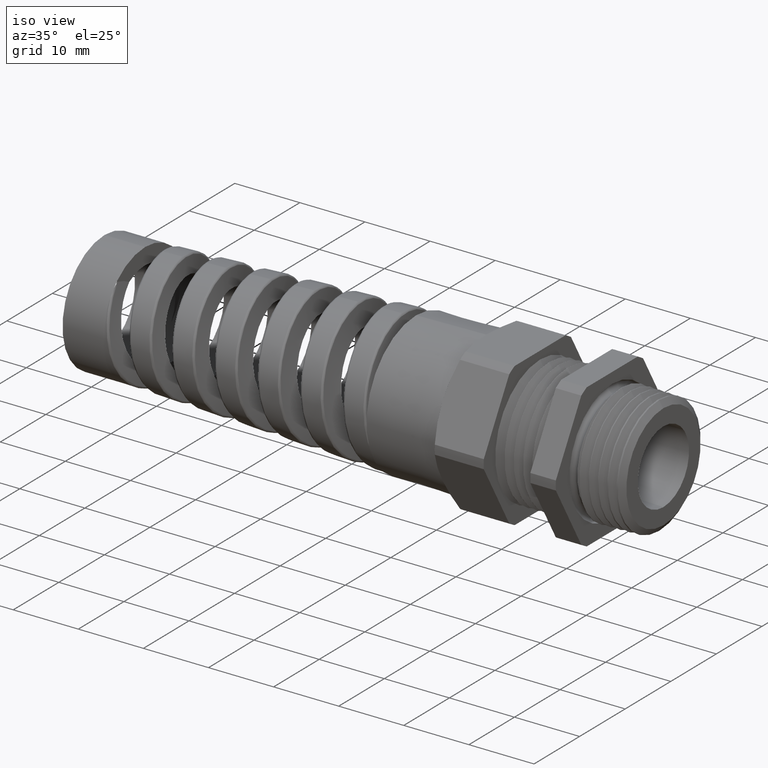
[diagram: clean part render]
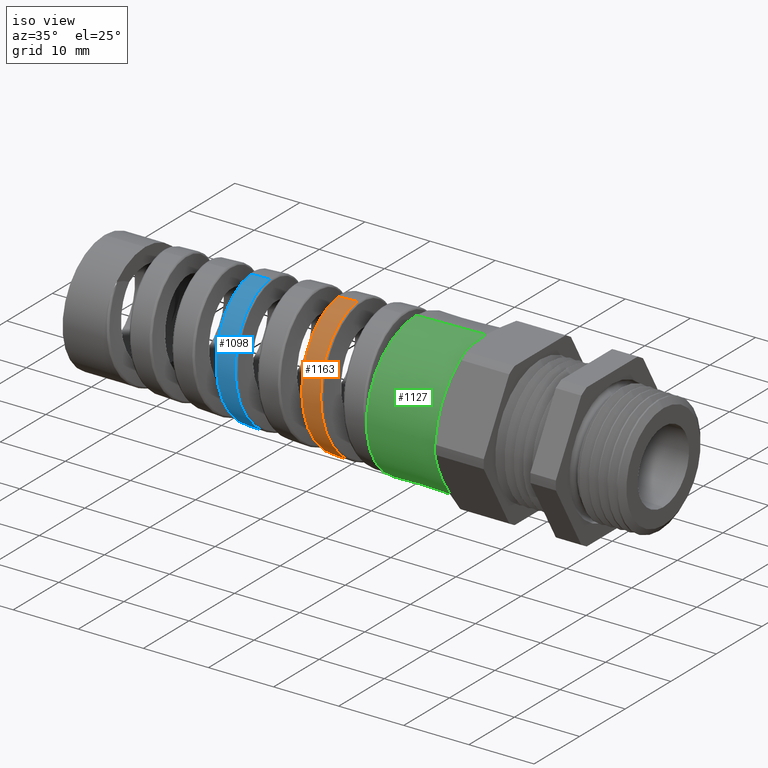
[diagram: same view with three faces highlighted in distinct colors, each labeled with its STEP entity id]
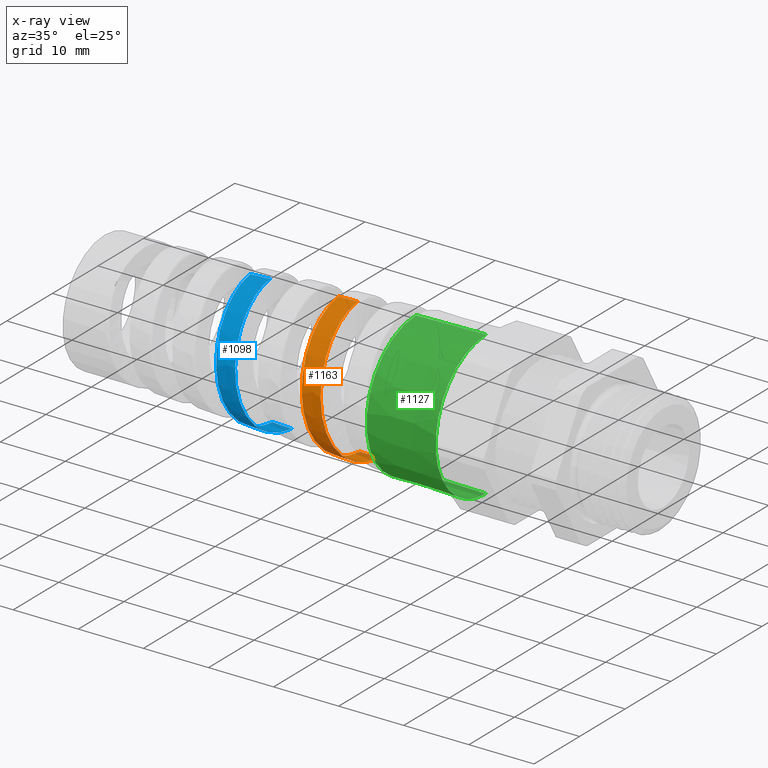
[diagram: x-ray of the same camera — body ghosted, the three highlighted faces saturated]
A machine part, iso view with three faces highlighted in distinct colors.
The next image is the same camera in x-ray (body ghosted, the three faces saturated) — at least one of them is partly hidden behind the body in this view.
Their STEP definitions:

[orange] entity #1163 — the highlighted conical surface has half-angle 2.001 deg.
#1137 = VERTEX_POINT ( 'NONE', #1633 ) ;
#1163 = ADVANCED_FACE ( 'NONE', ( #1777 ), #1918, .T. ) ;
#1164 = EDGE_LOOP ( 'NONE', ( #1165, #1166, #1168, #1169 ) ) ;
#1165 = ORIENTED_EDGE ( 'NONE', *, *, #4251, .F. ) ;
#1166 = ORIENTED_EDGE ( 'NONE', *, *, #1167, .T. ) ;
#1167 = EDGE_CURVE ( 'NONE', #1137, #1198, #1912, .T. ) ;
#1168 = ORIENTED_EDGE ( 'NONE', *, *, #1190, .T. ) ;
#1169 = ORIENTED_EDGE ( 'NONE', *, *, #1170, .T. ) ;
#1170 = EDGE_CURVE ( 'NONE', #1188, #4253, #1951, .T. ) ;
#1188 = VERTEX_POINT ( 'NONE', #2191 ) ;
#1190 = EDGE_CURVE ( 'NONE', #1198, #1188, #2225, .T. ) ;
#1198 = VERTEX_POINT ( 'NONE', #2303 ) ;
#1633 = CARTESIAN_POINT ( 'NONE',  ( -1.657005368434619100, -1.045155905622885300E-014, 0.4037536495823551600 ) ) ;
#1777 = FACE_OUTER_BOUND ( 'NONE', #1164, .T. ) ;
#1819 = CARTESIAN_POINT ( 'NONE',  ( -0.7624999999999998400, 0.0000000000000000000, 0.0000000000000000000 ) ) ;
#1871 = CARTESIAN_POINT ( 'NONE',  ( -1.554643207605568700, -0.2681517253787635300, -0.3077565691389879100 ) ) ;
#1873 = CARTESIAN_POINT ( 'NONE',  ( -1.558769546531999900, -0.2962620902932969200, -0.2796499718307309800 ) ) ;
#1874 = CARTESIAN_POINT ( 'NONE',  ( -1.560150133482987000, -0.3052030713080122200, -0.2697979116067020200 ) ) ;
#1876 = CARTESIAN_POINT ( 'NONE',  ( -1.562933152212192500, -0.3221979301055433200, -0.2490967114207475200 ) ) ;
#1877 = CARTESIAN_POINT ( 'NONE',  ( -1.564322550680040400, -0.3301682368409062900, -0.2383420440853452100 ) ) ;
#1878 = CARTESIAN_POINT ( 'NONE',  ( -1.568454685550912700, -0.3522896315843009300, -0.2052340865490440100 ) ) ;
#1879 = CARTESIAN_POINT ( 'NONE',  ( -1.571181004664201600, -0.3647802304983710500, -0.1819089893058185600 ) ) ;
#1880 = CARTESIAN_POINT ( 'NONE',  ( -1.575317304388700100, -0.3800948421174691900, -0.1450324934828449200 ) ) ;
#1881 = CARTESIAN_POINT ( 'NONE',  ( -1.576711153918873800, -0.3846426937054626700, -0.1323542195636096500 ) ) ;
#1882 = CARTESIAN_POINT ( 'NONE',  ( -1.579476848268243100, -0.3923977073386157900, -0.1068322747340641500 ) ) ;
#1883 = CARTESIAN_POINT ( 'NONE',  ( -1.580852031547526100, -0.3956242416152773200, -0.09396144797018725300 ) ) ;
#1884 = CARTESIAN_POINT ( 'NONE',  ( -1.584975670297830200, -0.4033948527210536300, -0.05502899458217374400 ) ) ;
#1885 = CARTESIAN_POINT ( 'NONE',  ( -1.587722580518182700, -0.4060483805885239900, -0.02865052290081243300 ) ) ;
#1886 = CARTESIAN_POINT ( 'NONE',  ( -1.593308739400462800, -0.4060957745787011100, 0.02497767727719830300 ) ) ;
#1887 = CARTESIAN_POINT ( 'NONE',  ( -1.596059741132180900, -0.4034808310636031100, 0.05142030298725103900 ) ) ;
#1888 = CARTESIAN_POINT ( 'NONE',  ( -1.600182434010674700, -0.3957709864602546000, 0.09035565562755415400 ) ) ;
#1889 = CARTESIAN_POINT ( 'NONE',  ( -1.601557539039651300, -0.3925651607315482900, 0.1032224002376031500 ) ) ;
#1890 = CARTESIAN_POINT ( 'NONE',  ( -1.604324434086305000, -0.3848550645715722000, 0.1287262081812939300 ) ) ;
#1892 = CARTESIAN_POINT ( 'NONE',  ( -1.605722281214492700, -0.3803235950986437200, 0.1414152182817947400 ) ) ;
#1893 = CARTESIAN_POINT ( 'NONE',  ( -1.609877268563204600, -0.3650360437026247700, 0.1783475519873148300 ) ) ;
#1894 = CARTESIAN_POINT ( 'NONE',  ( -1.612619539223483900, -0.3525600746896031500, 0.2016842173047401800 ) ) ;
#1895 = CARTESIAN_POINT ( 'NONE',  ( -1.618154949039098300, -0.3231029535406170800, 0.2458107189588132600 ) ) ;
#1897 = CARTESIAN_POINT ( 'NONE',  ( -1.620969894004582200, -0.3059375753633538100, 0.2667212309695742300 ) ) ;
#1898 = CARTESIAN_POINT ( 'NONE',  ( -1.626498472146980800, -0.2684179883808136500, 0.3041930356925076600 ) ) ;
#1899 = CARTESIAN_POINT ( 'NONE',  ( -1.629239257126190400, -0.2479566896947310300, 0.3209831458487709700 ) ) ;
#1900 = CARTESIAN_POINT ( 'NONE',  ( -1.633404918620987800, -0.2146708157979143600, 0.3431875901470837800 ) ) ;
#1901 = CARTESIAN_POINT ( 'NONE',  ( -1.634805830798715900, -0.2031088711866093600, 0.3500967161934149800 ) ) ;
#1902 = CARTESIAN_POINT ( 'NONE',  ( -1.637579875008720900, -0.1796128371607581000, 0.3626041416551319400 ) ) ;
#1903 = CARTESIAN_POINT ( 'NONE',  ( -1.640341041720258200, -0.1556291128142057400, 0.3738864467045877000 ) ) ;
#1904 = CARTESIAN_POINT ( 'NONE',  ( -1.643104442780793000, -0.1306898924524170800, 0.3827606504749334600 ) ) ;
#1905 = CARTESIAN_POINT ( 'NONE',  ( -1.645881547714097600, -0.1052689472690607600, 0.3904172032816177200 ) ) ;
#1906 = CARTESIAN_POINT ( 'NONE',  ( -1.647282334799393700, -0.09226704677959678100, 0.3936462523018096100 ) ) ;
#1907 = CARTESIAN_POINT ( 'NONE',  ( -1.651486233508442600, -0.05285700989125091700, 0.4013672110305663300 ) ) ;
#1908 = CARTESIAN_POINT ( 'NONE',  ( -1.654241719995697600, -0.02647720809017997700, 0.4038501877704983600 ) ) ;
#1909 = CARTESIAN_POINT ( 'NONE',  ( -1.657005368434619100, -1.045155905622885300E-014, 0.4037536495823551600 ) ) ;
#1912 = B_SPLINE_CURVE_WITH_KNOTS ( 'NONE', 3,
 ( #1909, #1908, #1907, #1906, #1905, #1904, #1903, #1902, #1901, #1900, #1899, #1898, #1897, #1895, #1894, #1893, #1892, #1890, #1889, #1888, #1887, #1886, #1885, #1884, #1883, #1882, #1881, #1880, #1879, #1878, #1877, #1876, #1874, #1873, #1871, #1964, #1963, #1962, #1961, #1960, #1959, #1958, #1957, #1956, #1955, #1954, #1953 ),
 .UNSPECIFIED., .F., .F.,
 ( 4, 2, 2, 1, 2, 2, 2, 2, 2, 2, 2, 2, 2, 2, 2, 2, 2, 2, 2, 2, 2, 2, 2, 4 ),
 ( 0.2727568473908104600, 0.2748078867134302600, 0.2758334063747401300, 0.2768589260360500600, 0.2778844456973599300, 0.2789099653586698500, 0.2809610046812895900, 0.2830120440039093900, 0.2850630833265291900, 0.2860886029878391100, 0.2871141226491489800, 0.2891651619717687800, 0.2912162012943885800, 0.2922417209556984500, 0.2932672406170083700, 0.2953182799396281700, 0.2963437996009380400, 0.2973693192622479700, 0.2994203585848677100, 0.3004458782461776300, 0.3014713979074875000, 0.3024969175687974300, 0.3035224372301073000, 0.3055734765527271000 ),
 .UNSPECIFIED. ) ;
#1914 = DIRECTION ( 'NONE',  ( 0.0000000000000000000, 0.0000000000000000000, -1.000000000000000000 ) ) ;
#1915 = DIRECTION ( 'NONE',  ( 1.000000000000000000, 0.0000000000000000000, 0.0000000000000000000 ) ) ;
#1917 = AXIS2_PLACEMENT_3D ( 'NONE', #1819, #1915, #1914 ) ;
#1918 = CONICAL_SURFACE ( 'NONE', #1917, 0.4350000000000000500, 0.03491723117042448000 ) ;
#1919 = CARTESIAN_POINT ( 'NONE',  ( -1.480046302819386600, -0.4049562026441457200, 0.06508273617276491600 ) ) ;
#1920 = CARTESIAN_POINT ( 'NONE',  ( -1.478671961953510000, -0.4069133030181418800, 0.05184669311080660600 ) ) ;
#1921 = CARTESIAN_POINT ( 'NONE',  ( -1.475911305220831200, -0.4095301354939407400, 0.02511305518285657200 ) ) ;
#1922 = CARTESIAN_POINT ( 'NONE',  ( -1.474517224428818900, -0.4101876525493743900, 0.01153965946888415600 ) ) ;
#1923 = CARTESIAN_POINT ( 'NONE',  ( -1.470361166416759300, -0.4101406575147386000, -0.02892347396694809600 ) ) ;
#1924 = CARTESIAN_POINT ( 'NONE',  ( -1.467626828816071000, -0.4074739780076518900, -0.05553412916617405500 ) ) ;
#1925 = CARTESIAN_POINT ( 'NONE',  ( -1.463495352686015700, -0.3996158219831514900, -0.09490741290201500100 ) ) ;
#1926 = CARTESIAN_POINT ( 'NONE',  ( -1.462113387597545400, -0.3963488750980924700, -0.1079407758878054700 ) ) ;
#1928 = CARTESIAN_POINT ( 'NONE',  ( -1.459327137876068600, -0.3884793560040021900, -0.1338183818552980400 ) ) ;
#1929 = CARTESIAN_POINT ( 'NONE',  ( -1.457934968938724900, -0.3839063486530585000, -0.1465479253012451400 ) ) ;
#1930 = CARTESIAN_POINT ( 'NONE',  ( -1.453792879070466600, -0.3684769638541199900, -0.1836933669511928700 ) ) ;
#1932 = CARTESIAN_POINT ( 'NONE',  ( -1.451061894430551300, -0.3558711781981850300, -0.2072595311924391400 ) ) ;
#1933 = CARTESIAN_POINT ( 'NONE',  ( -1.446927286220980500, -0.3334616899313496100, -0.2407917048056592300 ) ) ;
#1934 = CARTESIAN_POINT ( 'NONE',  ( -1.445535132860558600, -0.3253559376544832300, -0.2517173067255709100 ) ) ;
#1935 = CARTESIAN_POINT ( 'NONE',  ( -1.442774457698816800, -0.3082540146286708600, -0.2725378076026095900 ) ) ;
#1936 = CARTESIAN_POINT ( 'NONE',  ( -1.441402690357250100, -0.2992464760460175100, -0.2824633674992345100 ) ) ;
#1937 = CARTESIAN_POINT ( 'NONE',  ( -1.437291201384585800, -0.2708877031242478700, -0.3108184153846704800 ) ) ;
#1938 = CARTESIAN_POINT ( 'NONE',  ( -1.434555046747972600, -0.2502131505987501000, -0.3278399003478225100 ) ) ;
#1939 = CARTESIAN_POINT ( 'NONE',  ( -1.428988762889460000, -0.2051974848470881100, -0.3579660362141629500 ) ) ;
#1940 = CARTESIAN_POINT ( 'NONE',  ( -1.426242023825827100, -0.1815238534716887800, -0.3706139354960386600 ) ) ;
#1941 = CARTESIAN_POINT ( 'NONE',  ( -1.422134982651174700, -0.1445068672804340800, -0.3860126430860309500 ) ) ;
#1942 = CARTESIAN_POINT ( 'NONE',  ( -1.420766133175137300, -0.1319059404207564600, -0.3905517366897475800 ) ) ;
#1943 = CARTESIAN_POINT ( 'NONE',  ( -1.418014214589937900, -0.1061710628562149700, -0.3984178230987684400 ) ) ;
#1944 = CARTESIAN_POINT ( 'NONE',  ( -1.416625007399998000, -0.09297704156383970700, -0.4017517311229860100 ) ) ;
#1946 = CARTESIAN_POINT ( 'NONE',  ( -1.412497802065200600, -0.05338908640080863900, -0.4097086133783756600 ) ) ;
#1948 = CARTESIAN_POINT ( 'NONE',  ( -1.409777751578805900, -0.02679252581223530100, -0.4123896634307366900 ) ) ;
#1949 = CARTESIAN_POINT ( 'NONE',  ( -1.407034006247075900, 9.802048682818862400E-013, -0.4124855063748489900 ) ) ;
#1951 = B_SPLINE_CURVE_WITH_KNOTS ( 'NONE', 3,
 ( #1949, #1948, #1946, #1944, #1943, #1942, #1941, #1940, #1939, #1938, #1937, #1936, #1935, #1934, #1933, #1932, #1930, #1929, #1928, #1926, #1925, #1924, #1923, #1922, #1921, #1920, #1919, #2009, #2008, #2007, #2006, #2005, #2004, #2003, #2002, #2001, #2000, #1999, #1998, #1997, #1996, #1995, #1994, #1993, #1992, #1991, #1990, #1989 ),
 .UNSPECIFIED., .F., .F.,
 ( 4, 2, 2, 2, 2, 2, 2, 2, 2, 2, 2, 2, 2, 2, 2, 2, 2, 2, 2, 2, 2, 2, 2, 4 ),
 ( 0.05611554522368703700, 0.05819069759877451600, 0.05922827378631825800, 0.06026584997386200100, 0.06234100234894948700, 0.06441615472403697300, 0.06545373091158070100, 0.06649130709912443000, 0.06856645947421191600, 0.06960403566175564500, 0.07064161184929938800, 0.07271676422438685900, 0.07375434041193060200, 0.07479191659947433100, 0.07582949278701806000, 0.07686706897456180300, 0.07894222134964927500, 0.07997979753719301800, 0.08101737372473674600, 0.08309252609982423200, 0.08413010228736797500, 0.08516767847491170400, 0.08724283084999918900, 0.08931798322508666100 ),
 .UNSPECIFIED. ) ;
#1953 = CARTESIAN_POINT ( 'NONE',  ( -1.524398681176952500, -5.001064890486754300E-014, -0.4083857906113432800 ) ) ;
#1954 = CARTESIAN_POINT ( 'NONE',  ( -1.527135124343977500, -0.02647779358396378300, -0.4082902027422090600 ) ) ;
#1955 = CARTESIAN_POINT ( 'NONE',  ( -1.529866479411397000, -0.05283878206886791900, -0.4056442032149785700 ) ) ;
#1956 = CARTESIAN_POINT ( 'NONE',  ( -1.534027275084713900, -0.09219183359646517000, -0.3977235993327366000 ) ) ;
#1957 = CARTESIAN_POINT ( 'NONE',  ( -1.535415709290413900, -0.1051908670467194000, -0.3944312213625750200 ) ) ;
#1958 = CARTESIAN_POINT ( 'NONE',  ( -1.538165156104614800, -0.1305880198175354800, -0.3866646022841682100 ) ) ;
#1959 = CARTESIAN_POINT ( 'NONE',  ( -1.539532140920263800, -0.1430430980559366500, -0.3821794182462758800 ) ) ;
#1960 = CARTESIAN_POINT ( 'NONE',  ( -1.542266629925832700, -0.1674701098350784800, -0.3720192069734965000 ) ) ;
#1961 = CARTESIAN_POINT ( 'NONE',  ( -1.543633822550640700, -0.1794420846570636000, -0.3663441953395046900 ) ) ;
#1962 = CARTESIAN_POINT ( 'NONE',  ( -1.546382713477460400, -0.2028933117100660800, -0.3537846024406177700 ) ) ;
#1963 = CARTESIAN_POINT ( 'NONE',  ( -1.547772145725865100, -0.2144334227519800200, -0.3468562112144383300 ) ) ;
#1964 = CARTESIAN_POINT ( 'NONE',  ( -1.551913703816812700, -0.2477067271942180500, -0.3245749696598713200 ) ) ;
#1989 = CARTESIAN_POINT ( 'NONE',  ( -1.539625648009477700, -1.770506723508822800E-016, 0.4078538909065045900 ) ) ;
#1990 = CARTESIAN_POINT ( 'NONE',  ( -1.536859298258108400, -0.02672640283955365900, 0.4079505234553514300 ) ) ;
#1991 = CARTESIAN_POINT ( 'NONE',  ( -1.534097885512245100, -0.05348755009893144800, 0.4054306841803483900 ) ) ;
#1992 = CARTESIAN_POINT ( 'NONE',  ( -1.528510137682392400, -0.1066082729971419100, 0.3950050172826442600 ) ) ;
#1993 = CARTESIAN_POINT ( 'NONE',  ( -1.525759965421271200, -0.1322356991731356600, 0.3872580809966981200 ) ) ;
#1994 = CARTESIAN_POINT ( 'NONE',  ( -1.521613011493097000, -0.1693202355728110900, 0.3719782859300625500 ) ) ;
#1995 = CARTESIAN_POINT ( 'NONE',  ( -1.520227297157463700, -0.1814540166643766600, 0.3662706505733264700 ) ) ;
#1996 = CARTESIAN_POINT ( 'NONE',  ( -1.517436237225289600, -0.2052535064576146700, 0.3535964046279634900 ) ) ;
#1997 = CARTESIAN_POINT ( 'NONE',  ( -1.516030178084786900, -0.2169199190408656600, 0.3466179552516858700 ) ) ;
#1998 = CARTESIAN_POINT ( 'NONE',  ( -1.511859044358217200, -0.2504424270100486000, 0.3242488750579899900 ) ) ;
#1999 = CARTESIAN_POINT ( 'NONE',  ( -1.509113773145862800, -0.2711075598628577300, 0.3073044987976891200 ) ) ;
#2000 = CARTESIAN_POINT ( 'NONE',  ( -1.504966571227076600, -0.2995851150286084600, 0.2788594608295431600 ) ) ;
#2001 = CARTESIAN_POINT ( 'NONE',  ( -1.503572163001744900, -0.3086958021615345800, 0.2688178749163185900 ) ) ;
#2002 = CARTESIAN_POINT ( 'NONE',  ( -1.500790452836147800, -0.3258308961878131300, 0.2479312223716337300 ) ) ;
#2003 = CARTESIAN_POINT ( 'NONE',  ( -1.499409721719605600, -0.3338200052290456500, 0.2371409654018625200 ) ) ;
#2004 = CARTESIAN_POINT ( 'NONE',  ( -1.495275276321623000, -0.3561011103454582700, 0.2037614729345977000 ) ) ;
#2005 = CARTESIAN_POINT ( 'NONE',  ( -1.492528981369897600, -0.3687228285111642200, 0.1801730846785158900 ) ) ;
#2006 = CARTESIAN_POINT ( 'NONE',  ( -1.488345711147501800, -0.3842097475226974900, 0.1427388749066266500 ) ) ;
#2007 = CARTESIAN_POINT ( 'NONE',  ( -1.486946165112110300, -0.3887660233942792400, 0.1299625408647942800 ) ) ;
#2008 = CARTESIAN_POINT ( 'NONE',  ( -1.484175504551327200, -0.3965297233216042400, 0.1042725937705103200 ) ) ;
#2009 = CARTESIAN_POINT ( 'NONE',  ( -1.482797604603491200, -0.3997644193682375300, 0.09129573741376634200 ) ) ;
#2191 = CARTESIAN_POINT ( 'NONE',  ( -1.407034006247075900, 9.802048682818862400E-013, -0.4124855063748489900 ) ) ;
#2221 = DIRECTION ( 'NONE',  ( 0.9993904554178625300, 0.0000000000000000000, -0.03491013634572582400 ) ) ;
#2223 = VECTOR ( 'NONE', #2221, 39.37007874015748900 ) ;
#2224 = CARTESIAN_POINT ( 'NONE',  ( -0.7624999999999998400, 0.0000000000000000000, -0.4350000000000000500 ) ) ;
#2225 = LINE ( 'NONE', #2224, #2223 ) ;
#2303 = CARTESIAN_POINT ( 'NONE',  ( -1.524398681176952500, -5.001064890486754300E-014, -0.4083857906113432800 ) ) ;
#4251 = EDGE_CURVE ( 'NONE', #1137, #4253, #6978, .T. ) ;
#4253 = VERTEX_POINT ( 'NONE', #6974 ) ;
#6974 = CARTESIAN_POINT ( 'NONE',  ( -1.539625648009477700, -1.770506723508822800E-016, 0.4078538909065045900 ) ) ;
#6975 = DIRECTION ( 'NONE',  ( 0.9993904554178625300, 4.275258673359081200E-018, 0.03491013634572582400 ) ) ;
#6976 = VECTOR ( 'NONE', #6975, 39.37007874015748900 ) ;
#6977 = CARTESIAN_POINT ( 'NONE',  ( -0.7624999999999998400, 5.327213576290987000E-017, 0.4350000000000000500 ) ) ;
#6978 = LINE ( 'NONE', #6977, #6976 ) ;

[blue] entity #1098 — the highlighted conical surface has half-angle 2.001 deg.
#1098 = ADVANCED_FACE ( 'NONE', ( #1572 ), #1571, .T. ) ;
#1099 = EDGE_LOOP ( 'NONE', ( #1100, #1201, #1203, #1204 ) ) ;
#1100 = ORIENTED_EDGE ( 'NONE', *, *, #4152, .F. ) ;
#1201 = ORIENTED_EDGE ( 'NONE', *, *, #1202, .T. ) ;
#1202 = EDGE_CURVE ( 'NONE', #4150, #4208, #2334, .T. ) ;
#1203 = ORIENTED_EDGE ( 'NONE', *, *, #4246, .T. ) ;
#1204 = ORIENTED_EDGE ( 'NONE', *, *, #1205, .T. ) ;
#1205 = EDGE_CURVE ( 'NONE', #4244, #4189, #2371, .T. ) ;
#1567 = DIRECTION ( 'NONE',  ( 0.0000000000000000000, 0.0000000000000000000, -1.000000000000000000 ) ) ;
#1568 = DIRECTION ( 'NONE',  ( 1.000000000000000000, 0.0000000000000000000, 0.0000000000000000000 ) ) ;
#1569 = CARTESIAN_POINT ( 'NONE',  ( -0.7624999999999998400, 0.0000000000000000000, 0.0000000000000000000 ) ) ;
#1570 = AXIS2_PLACEMENT_3D ( 'NONE', #1569, #1568, #1567 ) ;
#1571 = CONICAL_SURFACE ( 'NONE', #1570, 0.4350000000000000500, 0.03491723117042448000 ) ;
#1572 = FACE_OUTER_BOUND ( 'NONE', #1099, .T. ) ;
#2305 = CARTESIAN_POINT ( 'NONE',  ( -2.126370660569407700, -0.3844977299442238200, 0.04866515709839282200 ) ) ;
#2307 = CARTESIAN_POINT ( 'NONE',  ( -2.127762174742125800, -0.3826361861277162700, 0.06132767738618325600 ) ) ;
#2308 = CARTESIAN_POINT ( 'NONE',  ( -2.131934761300744400, -0.3751907628877284000, 0.09889053147139538500 ) ) ;
#2309 = CARTESIAN_POINT ( 'NONE',  ( -2.134681747826880500, -0.3678479014409843400, 0.1230756931308243500 ) ) ;
#2310 = CARTESIAN_POINT ( 'NONE',  ( -2.138823722133870400, -0.3533745489376233200, 0.1580994651423452400 ) ) ;
#2312 = CARTESIAN_POINT ( 'NONE',  ( -2.140207691678158900, -0.3479694562831129300, 0.1695635975051179000 ) ) ;
#2313 = CARTESIAN_POINT ( 'NONE',  ( -2.142992072758975700, -0.3359657447497216300, 0.1920581349191107800 ) ) ;
#2314 = CARTESIAN_POINT ( 'NONE',  ( -2.144389017098595300, -0.3293732397556247700, 0.2030593515420266400 ) ) ;
#2315 = CARTESIAN_POINT ( 'NONE',  ( -2.148536531064225000, -0.3082387410800297400, 0.2346892385009958800 ) ) ;
#2317 = CARTESIAN_POINT ( 'NONE',  ( -2.151272859690020100, -0.2922275205443242700, 0.2542033726353158400 ) ) ;
#2318 = CARTESIAN_POINT ( 'NONE',  ( -2.155422266430241200, -0.2653320012069820300, 0.2811064137973303700 ) ) ;
#2319 = CARTESIAN_POINT ( 'NONE',  ( -2.156820497043112600, -0.2558288027932271200, 0.2897196870895734600 ) ) ;
#2321 = CARTESIAN_POINT ( 'NONE',  ( -2.159606213919483200, -0.2361088610831700300, 0.3058812003319825700 ) ) ;
#2322 = CARTESIAN_POINT ( 'NONE',  ( -2.160990707245102900, -0.2259190896999337400, 0.3134181947293119300 ) ) ;
#2323 = CARTESIAN_POINT ( 'NONE',  ( -2.165138996620118700, -0.1943885526359963000, 0.3344402712320093100 ) ) ;
#2324 = CARTESIAN_POINT ( 'NONE',  ( -2.167898222848323500, -0.1720958273801919100, 0.3463516376512482100 ) ) ;
#2325 = CARTESIAN_POINT ( 'NONE',  ( -2.172090797155350000, -0.1366917561326356200, 0.3609568788147579600 ) ) ;
#2326 = CARTESIAN_POINT ( 'NONE',  ( -2.173487895934960600, -0.1246353747481168900, 0.3652402050717422100 ) ) ;
#2327 = CARTESIAN_POINT ( 'NONE',  ( -2.176257496998212900, -0.1003714412120349400, 0.3725390380533971100 ) ) ;
#2328 = CARTESIAN_POINT ( 'NONE',  ( -2.179014103084315800, -0.07585307199170089600, 0.3786137880975949900 ) ) ;
#2329 = CARTESIAN_POINT ( 'NONE',  ( -2.181774188389468300, -0.05083453006399878800, 0.3822664657744580500 ) ) ;
#2330 = CARTESIAN_POINT ( 'NONE',  ( -2.184550824536832800, -0.02556306307304528900, 0.3846863316737793000 ) ) ;
#2331 = CARTESIAN_POINT ( 'NONE',  ( -2.185955198654601500, -0.01272982191988094600, 0.3852766763504000300 ) ) ;
#2332 = CARTESIAN_POINT ( 'NONE',  ( -2.187349891809638800, -8.194602628014416600E-016, 0.3852279577260228600 ) ) ;
#2334 = B_SPLINE_CURVE_WITH_KNOTS ( 'NONE', 3,
 ( #2332, #2331, #2330, #2329, #2328, #2327, #2326, #2325, #2324, #2323, #2322, #2321, #2319, #2318, #2317, #2315, #2314, #2313, #2312, #2310, #2309, #2308, #2307, #2305, #2396, #2395, #2394, #2393, #2392, #2391, #2390, #2389, #2388, #2387, #2386, #2385, #2384, #2383, #2382, #2381, #2380, #2379, #2378, #2377, #2376, #2375, #2374, #2373 ),
 .UNSPECIFIED., .F., .F.,
 ( 4, 2, 1, 2, 2, 2, 2, 2, 2, 2, 2, 2, 2, 1, 2, 2, 2, 2, 2, 2, 2, 2, 2, 2, 4 ),
 ( 0.1452595859533729600, 0.1462381205037656700, 0.1472166550541583700, 0.1481951896045510800, 0.1491737241549438200, 0.1511307932557292300, 0.1521093278061219400, 0.1530878623565146700, 0.1550449314573000800, 0.1560234660076927900, 0.1570020005580855000, 0.1589590696588709400, 0.1599376042092636500, 0.1609161387596563800, 0.1618946733100490900, 0.1628732078604417900, 0.1648302769612272300, 0.1667873460620126500, 0.1687444151627980900, 0.1697229497131908000, 0.1707014842635835000, 0.1726585533643689400, 0.1746156224651543600, 0.1755941570155470900, 0.1765726915659398000 ),
 .UNSPECIFIED. ) ;
#2353 = CARTESIAN_POINT ( 'NONE',  ( -1.975975392377489000, -0.3106910762444328700, -0.2403779669989765100 ) ) ;
#2354 = CARTESIAN_POINT ( 'NONE',  ( -1.973194742603825700, -0.2943035356183310600, -0.2603309827548739300 ) ) ;
#2355 = CARTESIAN_POINT ( 'NONE',  ( -1.971816982223186400, -0.2856816057460047100, -0.2698280515711145600 ) ) ;
#2356 = CARTESIAN_POINT ( 'NONE',  ( -1.967700539681868500, -0.2585727628063512800, -0.2969241396689332200 ) ) ;
#2357 = CARTESIAN_POINT ( 'NONE',  ( -1.964977492541665600, -0.2388543771279962300, -0.3131408680959431000 ) ) ;
#2358 = CARTESIAN_POINT ( 'NONE',  ( -1.960837373348062400, -0.2067602936284820800, -0.3346270567145474000 ) ) ;
#2359 = CARTESIAN_POINT ( 'NONE',  ( -1.959448033671843800, -0.1956357137558253900, -0.3413042662552064300 ) ) ;
#2360 = CARTESIAN_POINT ( 'NONE',  ( -1.956696987096510700, -0.1730270474035189300, -0.3534107441563102400 ) ) ;
#2361 = CARTESIAN_POINT ( 'NONE',  ( -1.953958155730190200, -0.1499413435336605100, -0.3643531576653039600 ) ) ;
#2362 = CARTESIAN_POINT ( 'NONE',  ( -1.951217429982925000, -0.1259195576538828000, -0.3730039704068515700 ) ) ;
#2364 = CARTESIAN_POINT ( 'NONE',  ( -1.948464105145526700, -0.1014252990883044200, -0.3804948121885222700 ) ) ;
#2365 = CARTESIAN_POINT ( 'NONE',  ( -1.947074637188145600, -0.08888236006132667300, -0.3836715279711551700 ) ) ;
#2366 = CARTESIAN_POINT ( 'NONE',  ( -1.942918631188538200, -0.05095195920732620300, -0.3913069386220182600 ) ) ;
#2367 = CARTESIAN_POINT ( 'NONE',  ( -1.940196756758513200, -0.02553565141961957800, -0.3938613698184951800 ) ) ;
#2368 = CARTESIAN_POINT ( 'NONE',  ( -1.937465472953645400, -3.638737823920153000E-014, -0.3939567774637376400 ) ) ;
#2371 = B_SPLINE_CURVE_WITH_KNOTS ( 'NONE', 3,
 ( #2368, #2367, #2366, #2365, #2364, #2362, #2361, #2360, #2359, #2358, #2357, #2356, #2355, #2354, #2353, #2452, #2451, #2449, #2448, #2446, #2445, #2443, #2441, #2440, #2439, #2438, #2436, #2435, #2433, #2431, #2430, #2429, #2428, #2426, #2424, #2423, #2421, #2420, #2418, #2417, #2415, #2413, #2412, #2410, #2409, #2408, #2407 ),
 .UNSPECIFIED., .F., .F.,
 ( 4, 2, 2, 1, 2, 2, 2, 2, 2, 2, 2, 2, 2, 2, 2, 2, 2, 2, 2, 2, 2, 2, 2, 4 ),
 ( 0.1866637668457372400, 0.1886448751772085400, 0.1896354293429442000, 0.1906259835086798500, 0.1916165376744154700, 0.1926070918401511200, 0.1945882001716224300, 0.1955787543373580800, 0.1965693085030937300, 0.1985504168345650400, 0.1995409710003006600, 0.2005315251660363100, 0.2025126334975076200, 0.2044937418289789200, 0.2054842959947145700, 0.2064748501604502200, 0.2084559584919215000, 0.2094465126576571500, 0.2104370668233928000, 0.2124181751548641100, 0.2143992834863354100, 0.2163803918178067200, 0.2173709459835423700, 0.2183615001492780200 ),
 .UNSPECIFIED. ) ;
#2373 = CARTESIAN_POINT ( 'NONE',  ( -2.054777784356680100, -6.632181507400093000E-013, -0.3898588908330314400 ) ) ;
#2374 = CARTESIAN_POINT ( 'NONE',  ( -2.056156249844125900, -0.01271866685871823200, -0.3898107390642453500 ) ) ;
#2375 = CARTESIAN_POINT ( 'NONE',  ( -2.057545743304332900, -0.02555456187931710200, -0.3891310326239851800 ) ) ;
#2376 = CARTESIAN_POINT ( 'NONE',  ( -2.060294930944400100, -0.05083321598198712500, -0.3865451195548335100 ) ) ;
#2377 = CARTESIAN_POINT ( 'NONE',  ( -2.061661145166771900, -0.06333832422216030500, -0.3846428471878191600 ) ) ;
#2378 = CARTESIAN_POINT ( 'NONE',  ( -2.065756325753397500, -0.1004563481114281700, -0.3771431116319911600 ) ) ;
#2379 = CARTESIAN_POINT ( 'NONE',  ( -2.068487297891895800, -0.1247248965586708500, -0.3697495001624309700 ) ) ;
#2380 = CARTESIAN_POINT ( 'NONE',  ( -2.074031881946055500, -0.1719467554079084900, -0.3500778671726684200 ) ) ;
#2381 = CARTESIAN_POINT ( 'NONE',  ( -2.076766365927292600, -0.1942211280190722400, -0.3380938843662714100 ) ) ;
#2382 = CARTESIAN_POINT ( 'NONE',  ( -2.080884866748907000, -0.2256951886422827200, -0.3170186376368514000 ) ) ;
#2383 = CARTESIAN_POINT ( 'NONE',  ( -2.082260215339130700, -0.2358613316397470100, -0.3094732782131202600 ) ) ;
#2384 = CARTESIAN_POINT ( 'NONE',  ( -2.085025632203731900, -0.2555267360666754200, -0.2933176417156739800 ) ) ;
#2385 = CARTESIAN_POINT ( 'NONE',  ( -2.086418319772672900, -0.2650422735625911400, -0.2846809583516328200 ) ) ;
#2386 = CARTESIAN_POINT ( 'NONE',  ( -2.090550677600564000, -0.2919610361951312500, -0.2577226786210651800 ) ) ;
#2387 = CARTESIAN_POINT ( 'NONE',  ( -2.093273207944855900, -0.3079685280357894500, -0.2382018471978895900 ) ) ;
#2388 = CARTESIAN_POINT ( 'NONE',  ( -2.098769102362217300, -0.3361279696883690000, -0.1960958582991277300 ) ) ;
#2389 = CARTESIAN_POINT ( 'NONE',  ( -2.101559934637094300, -0.3482976554230207100, -0.1733392901068927500 ) ) ;
#2390 = CARTESIAN_POINT ( 'NONE',  ( -2.107066008459458600, -0.3676615831824001600, -0.1266231617398268200 ) ) ;
#2391 = CARTESIAN_POINT ( 'NONE',  ( -2.109808834747845200, -0.3750264114744423200, -0.1024631437959762200 ) ) ;
#2392 = CARTESIAN_POINT ( 'NONE',  ( -2.113970642652275100, -0.3825170057485540200, -0.06499949323500411900 ) ) ;
#2393 = CARTESIAN_POINT ( 'NONE',  ( -2.115365946185532300, -0.3844089649976667500, -0.05229731371374735800 ) ) ;
#2394 = CARTESIAN_POINT ( 'NONE',  ( -2.118126096050118300, -0.3869099995952857700, -0.02703985511364929600 ) ) ;
#2395 = CARTESIAN_POINT ( 'NONE',  ( -2.120870829311356100, -0.3881610557184390100, -0.001789698151068600900 ) ) ;
#2396 = CARTESIAN_POINT ( 'NONE',  ( -2.123613904411846900, -0.3869519895740888800, 0.02344295321666029300 ) ) ;
#2407 = CARTESIAN_POINT ( 'NONE',  ( -2.070090085025429800, 9.851415753911152700E-017, 0.3893240102953848800 ) ) ;
#2408 = CARTESIAN_POINT ( 'NONE',  ( -2.068706397478911700, -0.01275478796503897400, 0.3893723444781329000 ) ) ;
#2409 = CARTESIAN_POINT ( 'NONE',  ( -2.067321257281926600, -0.02551692287056997100, 0.3887954528933204600 ) ) ;
#2410 = CARTESIAN_POINT ( 'NONE',  ( -2.064535561637732100, -0.05105477077705478100, 0.3863705800829785300 ) ) ;
#2412 = CARTESIAN_POINT ( 'NONE',  ( -2.063127197930660000, -0.06390072364570442700, 0.3845060129652627100 ) ) ;
#2413 = CARTESIAN_POINT ( 'NONE',  ( -2.058936909337592900, -0.1017770870643371800, 0.3770680400638583000 ) ) ;
#2415 = CARTESIAN_POINT ( 'NONE',  ( -2.056187387694968600, -0.1262143335602174700, 0.3696956165181569700 ) ) ;
#2417 = CARTESIAN_POINT ( 'NONE',  ( -2.050661931362297400, -0.1734835286275277500, 0.3502269055388103600 ) ) ;
#2418 = CARTESIAN_POINT ( 'NONE',  ( -2.047859068649838600, -0.1965053712176676200, 0.3379625791443772700 ) ) ;
#2420 = CARTESIAN_POINT ( 'NONE',  ( -2.042328240308913100, -0.2390715866045868000, 0.3095619716278759100 ) ) ;
#2421 = CARTESIAN_POINT ( 'NONE',  ( -2.039580169211417300, -0.2588116270515826700, 0.2933948745945859100 ) ) ;
#2423 = CARTESIAN_POINT ( 'NONE',  ( -2.035406553107438100, -0.2860744288120603600, 0.2661661170425326800 ) ) ;
#2424 = CARTESIAN_POINT ( 'NONE',  ( -2.034000721289456000, -0.2948005605864548200, 0.2565425152909437400 ) ) ;
#2426 = CARTESIAN_POINT ( 'NONE',  ( -2.031218851841305900, -0.3110971310940365300, 0.2366768408960771800 ) ) ;
#2428 = CARTESIAN_POINT ( 'NONE',  ( -2.029837750210473900, -0.3187083777454654500, 0.2264016993851233100 ) ) ;
#2429 = CARTESIAN_POINT ( 'NONE',  ( -2.025705226365460000, -0.3399637953500009300, 0.1945725927772288300 ) ) ;
#2430 = CARTESIAN_POINT ( 'NONE',  ( -2.022960500665468100, -0.3520527330641128300, 0.1720060952164595700 ) ) ;
#2431 = CARTESIAN_POINT ( 'NONE',  ( -2.018778813075570200, -0.3668852797299875800, 0.1361417587506207300 ) ) ;
#2433 = CARTESIAN_POINT ( 'NONE',  ( -2.017383089118689500, -0.3712379498136421700, 0.1239255569019852700 ) ) ;
#2435 = CARTESIAN_POINT ( 'NONE',  ( -2.014613344868410500, -0.3786609815139080300, 0.09933136870477919700 ) ) ;
#2436 = CARTESIAN_POINT ( 'NONE',  ( -2.013235781520284400, -0.3817466526671617300, 0.08692384512590316200 ) ) ;
#2438 = CARTESIAN_POINT ( 'NONE',  ( -2.009104665552326800, -0.3891646738400010300, 0.04937897811135574100 ) ) ;
#2439 = CARTESIAN_POINT ( 'NONE',  ( -2.006347759615433100, -0.3916759023286841600, 0.02388092746087295800 ) ) ;
#2440 = CARTESIAN_POINT ( 'NONE',  ( -2.000764456322671400, -0.3916104315337779500, -0.02782713621414339600 ) ) ;
#2441 = CARTESIAN_POINT ( 'NONE',  ( -1.998026102949132600, -0.3890425300859248800, -0.05326243568891034200 ) ) ;
#2443 = CARTESIAN_POINT ( 'NONE',  ( -1.993910130669261300, -0.3815364468120635600, -0.09080246797281252300 ) ) ;
#2445 = CARTESIAN_POINT ( 'NONE',  ( -1.992536777301728800, -0.3784209525365102000, -0.1032129225393363900 ) ) ;
#2446 = CARTESIAN_POINT ( 'NONE',  ( -1.989772409568191900, -0.3709348465401397500, -0.1278216948219350600 ) ) ;
#2448 = CARTESIAN_POINT ( 'NONE',  ( -1.988378285967513600, -0.3665463070075346600, -0.1400439999732224500 ) ) ;
#2449 = CARTESIAN_POINT ( 'NONE',  ( -1.984238030861943800, -0.3517706342153101300, -0.1755945426861454400 ) ) ;
#2451 = CARTESIAN_POINT ( 'NONE',  ( -1.981503677478864600, -0.3397215753694112800, -0.1980827857404341700 ) ) ;
#2452 = CARTESIAN_POINT ( 'NONE',  ( -1.977365610265740900, -0.3183819935618631400, -0.2300053144877525800 ) ) ;
#4150 = VERTEX_POINT ( 'NONE', #6478 ) ;
#4152 = EDGE_CURVE ( 'NONE', #4150, #4189, #6517, .T. ) ;
#4189 = VERTEX_POINT ( 'NONE', #6644 ) ;
#4208 = VERTEX_POINT ( 'NONE', #6750 ) ;
#4244 = VERTEX_POINT ( 'NONE', #6952 ) ;
#4246 = EDGE_CURVE ( 'NONE', #4208, #4244, #6982, .T. ) ;
#6478 = CARTESIAN_POINT ( 'NONE',  ( -2.187349891809638800, -8.194602628014416600E-016, 0.3852279577260228600 ) ) ;
#6515 = VECTOR ( 'NONE', #6603, 39.37007874015748900 ) ;
#6516 = CARTESIAN_POINT ( 'NONE',  ( -0.7624999999999998400, 5.327213576290987000E-017, 0.4350000000000000500 ) ) ;
#6517 = LINE ( 'NONE', #6516, #6515 ) ;
#6603 = DIRECTION ( 'NONE',  ( 0.9993904554178625300, 4.275258673359081200E-018, 0.03491013634572582400 ) ) ;
#6644 = CARTESIAN_POINT ( 'NONE',  ( -2.070090085025429800, 9.851415753911152700E-017, 0.3893240102953848800 ) ) ;
#6750 = CARTESIAN_POINT ( 'NONE',  ( -2.054777784356680100, -6.632181507400093000E-013, -0.3898588908330314400 ) ) ;
#6952 = CARTESIAN_POINT ( 'NONE',  ( -1.937465472953645400, -3.638737823920153000E-014, -0.3939567774637376400 ) ) ;
#6979 = DIRECTION ( 'NONE',  ( 0.9993904554178625300, 0.0000000000000000000, -0.03491013634572582400 ) ) ;
#6980 = VECTOR ( 'NONE', #6979, 39.37007874015748900 ) ;
#6981 = CARTESIAN_POINT ( 'NONE',  ( -0.7624999999999998400, 0.0000000000000000000, -0.4350000000000000500 ) ) ;
#6982 = LINE ( 'NONE', #6981, #6980 ) ;

[green] entity #1127 — the highlighted conical surface has half-angle 1 deg.
#1101 = VERTEX_POINT ( 'NONE', #1566 ) ;
#1102 = ORIENTED_EDGE ( 'NONE', *, *, #1103, .T. ) ;
#1103 = EDGE_CURVE ( 'NONE', #1131, #1104, #1565, .T. ) ;
#1104 = VERTEX_POINT ( 'NONE', #1561 ) ;
#1105 = ORIENTED_EDGE ( 'NONE', *, *, #1106, .T. ) ;
#1106 = EDGE_CURVE ( 'NONE', #1104, #1107, #1560, .T. ) ;
#1107 = VERTEX_POINT ( 'NONE', #1555 ) ;
#1108 = ORIENTED_EDGE ( 'NONE', *, *, #1109, .T. ) ;
#1109 = EDGE_CURVE ( 'NONE', #1107, #1110, #1621, .T. ) ;
#1110 = VERTEX_POINT ( 'NONE', #1616 ) ;
#1111 = ORIENTED_EDGE ( 'NONE', *, *, #1112, .T. ) ;
#1112 = EDGE_CURVE ( 'NONE', #1110, #1113, #1615, .T. ) ;
#1113 = VERTEX_POINT ( 'NONE', #1610 ) ;
#1114 = ORIENTED_EDGE ( 'NONE', *, *, #1115, .F. ) ;
#1115 = EDGE_CURVE ( 'NONE', #1101, #1113, #1609, .T. ) ;
#1127 = ADVANCED_FACE ( 'NONE', ( #1587 ), #1652, .T. ) ;
#1128 = EDGE_LOOP ( 'NONE', ( #1129, #1102, #1105, #1108, #1111, #1114 ) ) ;
#1129 = ORIENTED_EDGE ( 'NONE', *, *, #1130, .F. ) ;
#1130 = EDGE_CURVE ( 'NONE', #1131, #1101, #1651, .T. ) ;
#1131 = VERTEX_POINT ( 'NONE', #1642 ) ;
#1555 = CARTESIAN_POINT ( 'NONE',  ( -0.7625000000000001800, -0.3767210506462307900, -0.2175000000000002500 ) ) ;
#1556 = DIRECTION ( 'NONE',  ( 0.0000000000000000000, 0.0000000000000000000, 1.000000000000000000 ) ) ;
#1557 = DIRECTION ( 'NONE',  ( -1.000000000000000000, 0.0000000000000000000, 0.0000000000000000000 ) ) ;
#1558 = CARTESIAN_POINT ( 'NONE',  ( -0.7624999999999999600, 0.0000000000000000000, 0.0000000000000000000 ) ) ;
#1559 = AXIS2_PLACEMENT_3D ( 'NONE', #1558, #1557, #1556 ) ;
#1560 = CIRCLE ( 'NONE', #1559, 0.4350000000000000500 ) ;
#1561 = CARTESIAN_POINT ( 'NONE',  ( -0.7624999999999999600, 0.0000000000000000000, -0.4350000000000001600 ) ) ;
#1562 = DIRECTION ( 'NONE',  ( 0.9998476951563912700, -2.137303368083796300E-018, -0.01745240643728355000 ) ) ;
#1563 = VECTOR ( 'NONE', #1562, 39.37007874015748100 ) ;
#1564 = CARTESIAN_POINT ( 'NONE',  ( -0.7624999999999998400, -5.327213576290987000E-017, -0.4350000000000000500 ) ) ;
#1565 = LINE ( 'NONE', #1564, #1563 ) ;
#1566 = CARTESIAN_POINT ( 'NONE',  ( -1.186159999999999900, 0.0000000000000000000, 0.4276049871925114400 ) ) ;
#1587 = FACE_OUTER_BOUND ( 'NONE', #1128, .T. ) ;
#1606 = DIRECTION ( 'NONE',  ( 0.9998476951563912700, 0.0000000000000000000, 0.01745240643728355000 ) ) ;
#1607 = VECTOR ( 'NONE', #1606, 39.37007874015748100 ) ;
#1608 = CARTESIAN_POINT ( 'NONE',  ( -0.7624999999999998400, 0.0000000000000000000, 0.4350000000000000500 ) ) ;
#1609 = LINE ( 'NONE', #1608, #1607 ) ;
#1610 = CARTESIAN_POINT ( 'NONE',  ( -0.7624999999999998400, 0.0000000000000000000, 0.4350000000000000500 ) ) ;
#1611 = DIRECTION ( 'NONE',  ( 0.0000000000000000000, 0.0000000000000000000, 1.000000000000000000 ) ) ;
#1612 = DIRECTION ( 'NONE',  ( -1.000000000000000000, 0.0000000000000000000, 0.0000000000000000000 ) ) ;
#1613 = CARTESIAN_POINT ( 'NONE',  ( -0.7624999999999999600, 0.0000000000000000000, 0.0000000000000000000 ) ) ;
#1614 = AXIS2_PLACEMENT_3D ( 'NONE', #1613, #1612, #1611 ) ;
#1615 = CIRCLE ( 'NONE', #1614, 0.4350000000000000500 ) ;
#1616 = CARTESIAN_POINT ( 'NONE',  ( -0.7624999999999999600, -0.3767210506462307900, 0.2175000000000000300 ) ) ;
#1617 = DIRECTION ( 'NONE',  ( 0.0000000000000000000, 0.0000000000000000000, 1.000000000000000000 ) ) ;
#1618 = DIRECTION ( 'NONE',  ( -1.000000000000000000, 0.0000000000000000000, 0.0000000000000000000 ) ) ;
#1619 = CARTESIAN_POINT ( 'NONE',  ( -0.7624999999999999600, 0.0000000000000000000, 0.0000000000000000000 ) ) ;
#1620 = AXIS2_PLACEMENT_3D ( 'NONE', #1619, #1618, #1617 ) ;
#1621 = CIRCLE ( 'NONE', #1620, 0.4350000000000000500 ) ;
#1642 = CARTESIAN_POINT ( 'NONE',  ( -1.186159999999999900, -5.281932182469265700E-017, -0.4276049871925114400 ) ) ;
#1643 = DIRECTION ( 'NONE',  ( 0.0000000000000000000, 0.0000000000000000000, 1.000000000000000000 ) ) ;
#1644 = DIRECTION ( 'NONE',  ( -1.000000000000000000, 0.0000000000000000000, 0.0000000000000000000 ) ) ;
#1645 = CARTESIAN_POINT ( 'NONE',  ( -1.186159999999999900, 0.0000000000000000000, 0.0000000000000000000 ) ) ;
#1646 = AXIS2_PLACEMENT_3D ( 'NONE', #1645, #1644, #1643 ) ;
#1647 = DIRECTION ( 'NONE',  ( 0.0000000000000000000, 0.0000000000000000000, 1.000000000000000000 ) ) ;
#1648 = DIRECTION ( 'NONE',  ( 1.000000000000000000, 0.0000000000000000000, 0.0000000000000000000 ) ) ;
#1649 = CARTESIAN_POINT ( 'NONE',  ( -0.7624999999999998400, 0.0000000000000000000, 0.0000000000000000000 ) ) ;
#1650 = AXIS2_PLACEMENT_3D ( 'NONE', #1649, #1648, #1647 ) ;
#1651 = CIRCLE ( 'NONE', #1646, 0.4276049871925114400 ) ;
#1652 = CONICAL_SURFACE ( 'NONE', #1650, 0.4350000000000000500, 0.01745329251994333400 ) ;